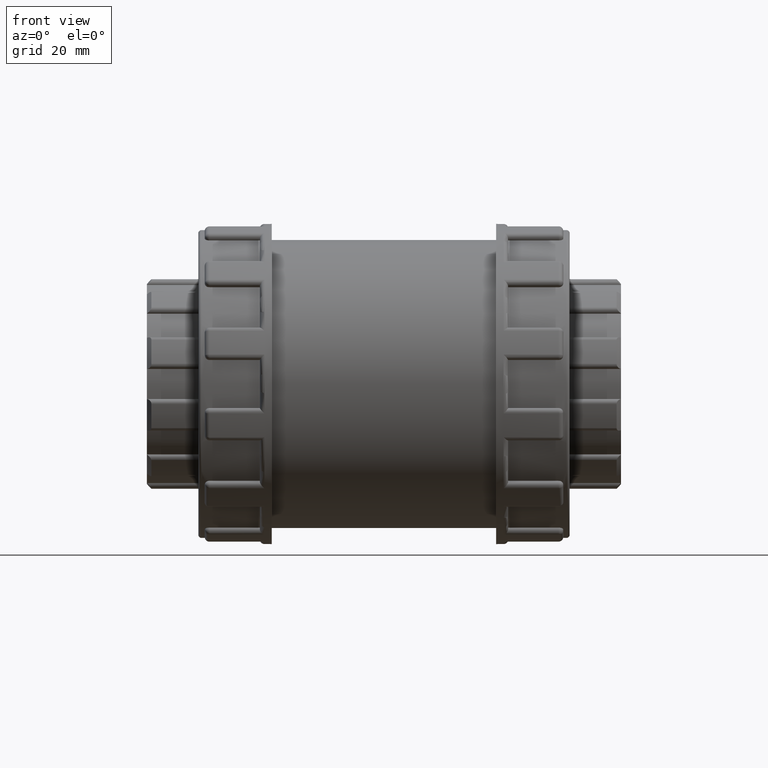
[diagram: clean part render]
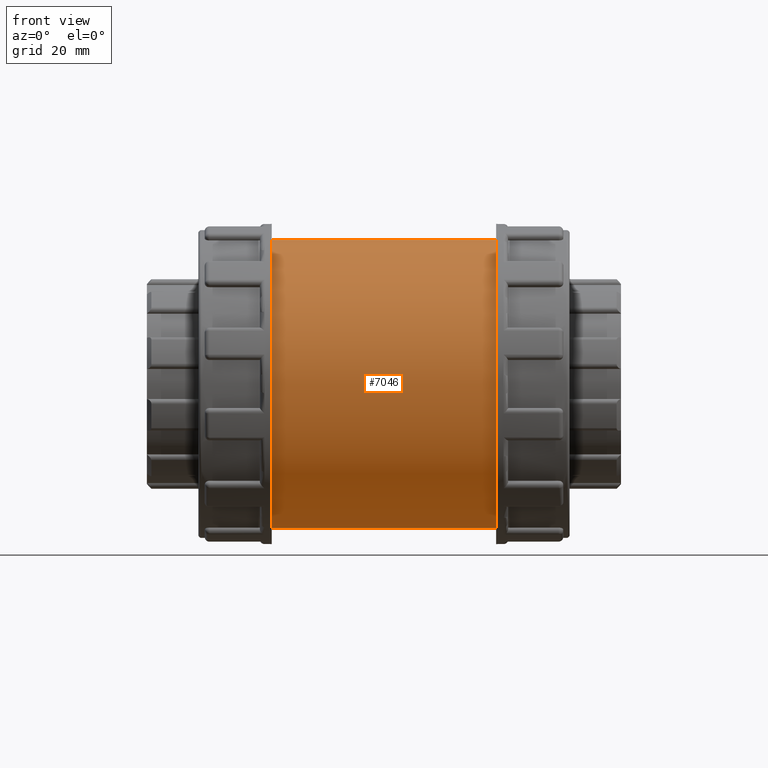
[diagram: same view with one face highlighted and labeled with its STEP entity id]
A machine part, front view. The second image highlights one B-rep face of the part: STEP entity #7046.
In plain terms, the highlighted cylindrical surface (bore or boss wall) has radius 43.2 mm, axis along (1, 0, 0).
Its self-contained STEP definition (entity closure, byte-faithful):
#103=B_SPLINE_CURVE_WITH_KNOTS('',3,(#11388,#11389,#11390,#11391,#11392,
#11393,#11394,#11395,#11396,#11397,#11398,#11399,#11400,#11401,#11402,#11403,
#11404,#11405,#11406,#11407,#11408,#11409,#11410,#11411,#11412,#11413,#11414,
#11415,#11416,#11417,#11418,#11419,#11420,#11421,#11422,#11423,#11424,#11425,
#11426,#11427,#11428,#11429,#11430,#11431,#11432,#11433,#11434,#11435,#11436,
#11437),.UNSPECIFIED.,.T.,.F.,(4,2,2,2,2,2,2,2,2,2,2,2,2,2,2,2,2,2,2,2,
2,2,2,2,4),(0.,0.273555490481054,0.547110980962108,1.09422196192422,1.64107919239117,
1.91450780762465,2.18793642285813,2.46136503809161,2.73479365332509,3.28165088379205,
3.82876186475416,4.10231735523521,4.37587284571627,4.64942833619732,4.92298382667837,
5.47009480764048,6.01695203810744,6.29038065334092,6.5638092685744,6.83723788380788,
7.11066649904136,7.65752372950832,8.20463471047043,8.47819020095148,8.75174569143253),
 .UNSPECIFIED.);
#220=FACE_BOUND('',#1304,.T.);
#221=FACE_BOUND('',#1305,.T.);
#849=FACE_OUTER_BOUND('',#1303,.T.);
#1303=EDGE_LOOP('',(#6414));
#1304=EDGE_LOOP('',(#6415));
#1305=EDGE_LOOP('',(#6416));
#2621=CIRCLE('',#7997,43.2);
#2622=CIRCLE('',#7999,43.2);
#2820=VERTEX_POINT('',#11387);
#3265=VERTEX_POINT('',#14021);
#3266=VERTEX_POINT('',#14024);
#3584=EDGE_CURVE('',#2820,#2820,#103,.T.);
#4317=EDGE_CURVE('',#3265,#3265,#2621,.T.);
#4318=EDGE_CURVE('',#3266,#3266,#2622,.T.);
#6414=ORIENTED_EDGE('',*,*,#4317,.T.);
#6415=ORIENTED_EDGE('',*,*,#3584,.T.);
#6416=ORIENTED_EDGE('',*,*,#4318,.F.);
#6615=CYLINDRICAL_SURFACE('',#7998,43.2);
#7046=ADVANCED_FACE('',(#849,#220,#221),#6615,.T.);
#7997=AXIS2_PLACEMENT_3D('',#14022,#10292,#10293);
#7998=AXIS2_PLACEMENT_3D('',#14023,#10294,#10295);
#7999=AXIS2_PLACEMENT_3D('',#14025,#10296,#10297);
#10292=DIRECTION('center_axis',(1.,0.,0.));
#10293=DIRECTION('ref_axis',(0.,0.,-1.));
#10294=DIRECTION('center_axis',(1.,0.,0.));
#10295=DIRECTION('ref_axis',(0.,1.,0.));
#10296=DIRECTION('center_axis',(1.,0.,0.));
#10297=DIRECTION('ref_axis',(0.,0.,-1.));
#11387=CARTESIAN_POINT('',(-2.77555756156289E-16,40.7293505963451,-14.4));
#11388=CARTESIAN_POINT('Ctrl Pts',(2.77555756156289E-16,40.7293505963451,
-14.4));
#11389=CARTESIAN_POINT('Ctrl Pts',(0.911851634936848,40.7293505963451,-14.4));
#11390=CARTESIAN_POINT('Ctrl Pts',(1.85237510172147,40.7608231408258,-14.3119947309041));
#11391=CARTESIAN_POINT('Ctrl Pts',(3.71854079876528,40.8881517698875,-13.9440647259576));
#11392=CARTESIAN_POINT('Ctrl Pts',(4.64421276125376,40.9838787409539,-13.664246131558));
#11393=CARTESIAN_POINT('Ctrl Pts',(7.30156579139086,41.3413979437776,-12.5590018698195));
#11394=CARTESIAN_POINT('Ctrl Pts',(8.91134038617684,41.6745915273069,-11.4533349119957));
#11395=CARTESIAN_POINT('Ctrl Pts',(11.4527454224844,42.2909727862583,-8.91192987568814));
#11396=CARTESIAN_POINT('Ctrl Pts',(12.5588662000788,42.615892156369,-7.30192049218663));
#11397=CARTESIAN_POINT('Ctrl Pts',(13.6643642946926,42.9589587369855,-4.64391440503191));
#11398=CARTESIAN_POINT('Ctrl Pts',(13.9442021330183,43.0498614969582,-3.71803209612966));
#11399=CARTESIAN_POINT('Ctrl Pts',(14.3120706504113,43.1704200591327,-1.85180168850107));
#11400=CARTESIAN_POINT('Ctrl Pts',(14.4,43.2,-0.91142871744493));
#11401=CARTESIAN_POINT('Ctrl Pts',(14.4,43.2,0.911428717444931));
#11402=CARTESIAN_POINT('Ctrl Pts',(14.3120706504113,43.1704200591327,1.85180168850107));
#11403=CARTESIAN_POINT('Ctrl Pts',(13.9442021330183,43.0498614969582,3.71803209612966));
#11404=CARTESIAN_POINT('Ctrl Pts',(13.6643642946926,42.9589587369855,4.64391440503192));
#11405=CARTESIAN_POINT('Ctrl Pts',(12.5588662000788,42.615892156369,7.30192049218663));
#11406=CARTESIAN_POINT('Ctrl Pts',(11.4527454224844,42.2909727862583,8.91192987568814));
#11407=CARTESIAN_POINT('Ctrl Pts',(8.91134038617683,41.6745915273069,11.4533349119957));
#11408=CARTESIAN_POINT('Ctrl Pts',(7.30156579139086,41.3413979437776,12.5590018698195));
#11409=CARTESIAN_POINT('Ctrl Pts',(4.64421276125376,40.9838787409539,13.664246131558));
#11410=CARTESIAN_POINT('Ctrl Pts',(3.71854079876528,40.8881517698875,13.9440647259576));
#11411=CARTESIAN_POINT('Ctrl Pts',(1.85237510172147,40.7608231408258,14.3119947309041));
#11412=CARTESIAN_POINT('Ctrl Pts',(0.911851634936847,40.7293505963451,14.4));
#11413=CARTESIAN_POINT('Ctrl Pts',(-0.911851634936847,40.7293505963451,
14.4));
#11414=CARTESIAN_POINT('Ctrl Pts',(-1.85237510172147,40.7608231408258,14.3119947309041));
#11415=CARTESIAN_POINT('Ctrl Pts',(-3.71854079876528,40.8881517698875,13.9440647259576));
#11416=CARTESIAN_POINT('Ctrl Pts',(-4.64421276125376,40.9838787409539,13.664246131558));
#11417=CARTESIAN_POINT('Ctrl Pts',(-7.30156579139086,41.3413979437776,12.5590018698195));
#11418=CARTESIAN_POINT('Ctrl Pts',(-8.91134038617683,41.6745915273069,11.4533349119957));
#11419=CARTESIAN_POINT('Ctrl Pts',(-11.4527454224844,42.2909727862583,8.91192987568814));
#11420=CARTESIAN_POINT('Ctrl Pts',(-12.5588662000788,42.615892156369,7.30192049218663));
#11421=CARTESIAN_POINT('Ctrl Pts',(-13.6643642946926,42.9589587369855,4.64391440503192));
#11422=CARTESIAN_POINT('Ctrl Pts',(-13.9442021330183,43.0498614969582,3.71803209612966));
#11423=CARTESIAN_POINT('Ctrl Pts',(-14.3120706504113,43.1704200591327,1.85180168850108));
#11424=CARTESIAN_POINT('Ctrl Pts',(-14.4,43.2,0.911428717444933));
#11425=CARTESIAN_POINT('Ctrl Pts',(-14.4,43.2,-0.911428717444929));
#11426=CARTESIAN_POINT('Ctrl Pts',(-14.3120706504113,43.1704200591327,-1.85180168850107));
#11427=CARTESIAN_POINT('Ctrl Pts',(-13.9442021330183,43.0498614969582,-3.71803209612966));
#11428=CARTESIAN_POINT('Ctrl Pts',(-13.6643642946926,42.9589587369855,-4.64391440503191));
#11429=CARTESIAN_POINT('Ctrl Pts',(-12.5588662000788,42.615892156369,-7.30192049218663));
#11430=CARTESIAN_POINT('Ctrl Pts',(-11.4527454224844,42.2909727862583,-8.91192987568814));
#11431=CARTESIAN_POINT('Ctrl Pts',(-8.91134038617684,41.6745915273069,-11.4533349119957));
#11432=CARTESIAN_POINT('Ctrl Pts',(-7.30156579139086,41.3413979437776,-12.5590018698195));
#11433=CARTESIAN_POINT('Ctrl Pts',(-4.64421276125376,40.9838787409539,-13.664246131558));
#11434=CARTESIAN_POINT('Ctrl Pts',(-3.71854079876527,40.8881517698875,-13.9440647259576));
#11435=CARTESIAN_POINT('Ctrl Pts',(-1.85237510172146,40.7608231408258,-14.3119947309041));
#11436=CARTESIAN_POINT('Ctrl Pts',(-0.911851634936843,40.7293505963451,
-14.4));
#11437=CARTESIAN_POINT('Ctrl Pts',(0.,40.7293505963451,-14.4));
#14021=CARTESIAN_POINT('',(-33.6,43.2,0.));
#14022=CARTESIAN_POINT('Origin',(-33.6,0.,0.));
#14023=CARTESIAN_POINT('Origin',(0.,0.,0.));
#14024=CARTESIAN_POINT('',(33.6,43.2,0.));
#14025=CARTESIAN_POINT('Origin',(33.6,0.,0.));